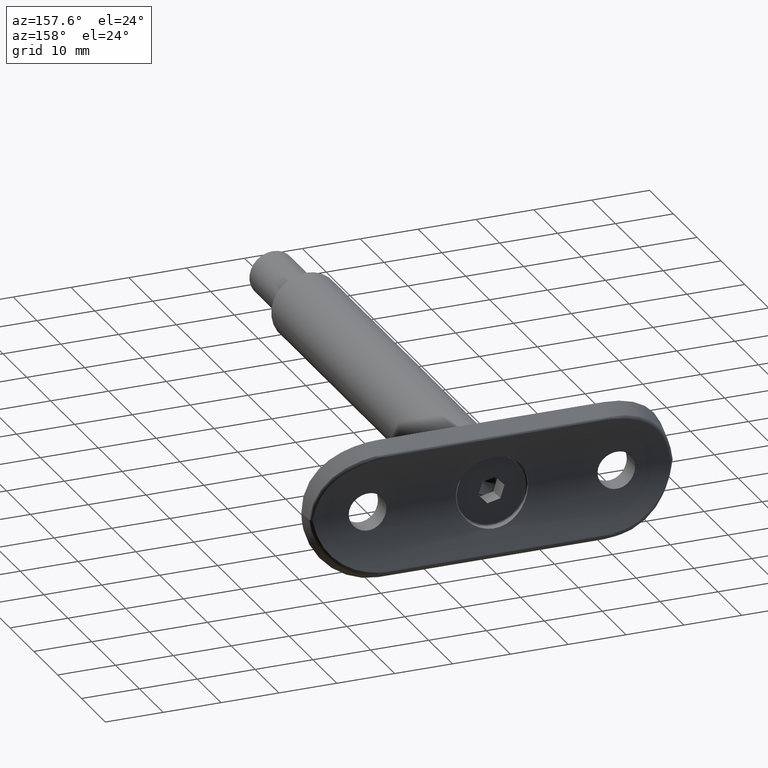
[diagram: clean part render]
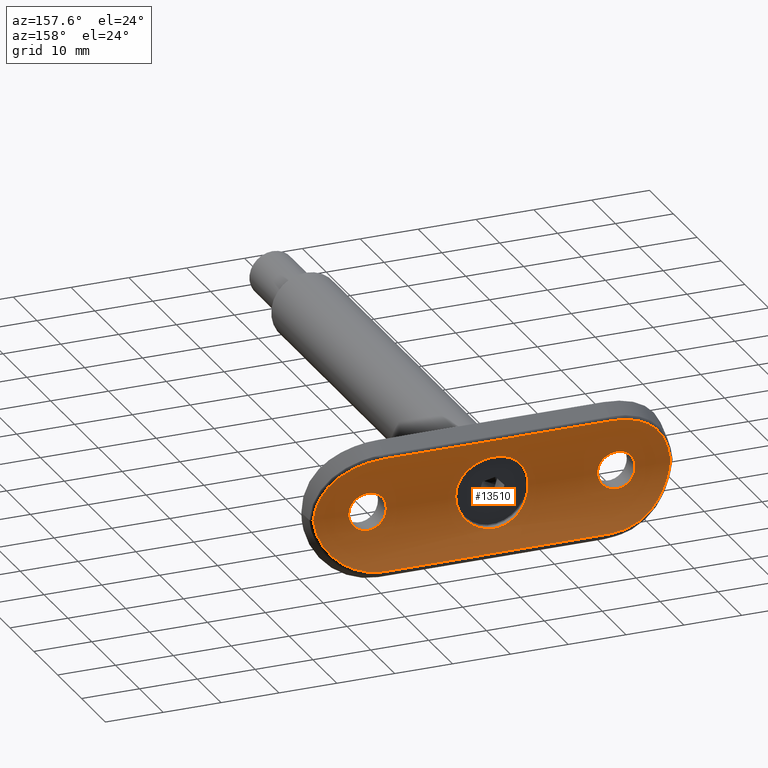
[diagram: same view with one face highlighted and labeled with its STEP entity id]
A machine part, auxiliary view. The second image highlights one B-rep face of the part: STEP entity #13510.
In plain terms, the highlighted cylindrical surface (partial cylindrical patch) has radius 21.2 mm, axis along (1, 0, 0).
Its self-contained STEP definition (entity closure, byte-faithful):
#27 = VECTOR ( 'NONE', #8560, 1000.000000000000000 ) ;
#30 = CARTESIAN_POINT ( 'NONE',  ( 0.8422358293998262200, 0.01571576921727201000, -24.64612005203396100 ) ) ;
#59 = CARTESIAN_POINT ( 'NONE',  ( -9.648266983172634400, 2.322637755928651500, 21.93581992887934700 ) ) ;
#66 = CARTESIAN_POINT ( 'NONE',  ( 7.640005329831074800, 1.423398855832131800, -26.66692244407042600 ) ) ;
#80 = CARTESIAN_POINT ( 'NONE',  ( 1.632114013627152800, 0.06218229672156012900, -18.68158538880011200 ) ) ;
#105 = EDGE_CURVE ( 'NONE', #8154, #10194, #7604, .T. ) ;
#129 = CARTESIAN_POINT ( 'NONE',  ( 1.983721702801608100, 0.09227673062906002800, -18.91695813430423800 ) ) ;
#132 = CARTESIAN_POINT ( 'NONE',  ( 9.869903768333188100, 2.437670730854278700, -19.50000000000000400 ) ) ;
#158 = CARTESIAN_POINT ( 'NONE',  ( -5.201211391313370000, 0.6457384445367473400, 29.03951747899034800 ) ) ;
#190 = ORIENTED_EDGE ( 'NONE', *, *, #6175, .T. ) ;
#207 = CARTESIAN_POINT ( 'NONE',  ( -7.640005329831074800, 1.423398855832126900, 26.66692244407043700 ) ) ;
#227 = CARTESIAN_POINT ( 'NONE',  ( -3.146879315023289900, 0.2348172704072529200, -22.33941132614858200 ) ) ;
#230 = CARTESIAN_POINT ( 'NONE',  ( -4.616649565942609000, 0.5065997281064381600, -29.41309669225901000 ) ) ;
#252 = CARTESIAN_POINT ( 'NONE',  ( -7.430964604426188600, 1.343631501921247900, 26.94263288636048900 ) ) ;
#435 = CARTESIAN_POINT ( 'NONE',  ( 0.4291155959866708200, 0.003316562383972961800, 18.27144141373703300 ) ) ;
#482 = CARTESIAN_POINT ( 'NONE',  ( 1.048768862925167700, 0.02504141971367204000, 18.41651341461582400 ) ) ;
#528 = CARTESIAN_POINT ( 'NONE',  ( 0.8422358293998262200, 0.01571576921727201000, 24.64612005203395700 ) ) ;
#534 = CARTESIAN_POINT ( 'NONE',  ( 3.811200534816030000, 0.3447709507075462100, -4.957723033748285600 ) ) ;
#578 = CARTESIAN_POINT ( 'NONE',  ( 3.145545920331509000, 0.2346159339094386600, 22.34487656152162300 ) ) ;
#628 = B_SPLINE_CURVE_WITH_KNOTS ( 'NONE', 3,
 ( #9442, #4099, #14364, #9683, #3908, #12019, #3180, #13586, #9926, #12263, #8972, #10138, #13427, #14564, #12313, #7682, #12421, #1980, #3132, #11239, #5348, #7737, #1932, #6631, #5298, #6465 ),
 .UNSPECIFIED., .F., .F.,
 ( 4, 2, 2, 2, 2, 2, 2, 2, 2, 2, 2, 2, 4 ),
 ( 0.0000000000000000000, 0.001059096318398935500, 0.002118192636797871000, 0.004236385273595744600, 0.005295481591994684500, 0.006354577910393622600, 0.008472770547191510100, 0.009531866865590450000, 0.01059096318398939000, 0.01270915582078727000, 0.01376825213918621500, 0.01482734845758516000, 0.01694554109438306200 ),
 .UNSPECIFIED. ) ;
#684 = CARTESIAN_POINT ( 'NONE',  ( -4.958897457267862100, 0.5876977555683001700, 3.809647071387578100 ) ) ;
#734 = CARTESIAN_POINT ( 'NONE',  ( -2.027418235541524400, 0.09375878759209072000, -5.926105725779486900 ) ) ;
#783 = CARTESIAN_POINT ( 'NONE',  ( -2.586182703388967500, 0.1579996132313417900, 23.47972158452784100 ) ) ;
#786 = CARTESIAN_POINT ( 'NONE',  ( 2.023361902274227300, 0.09337216526202657400, 5.927473218269420300 ) ) ;
#839 = CARTESIAN_POINT ( 'NONE',  ( 6.250272170820366600, 0.9423076863965762500, 0.4060068921556650400 ) ) ;
#890 = CARTESIAN_POINT ( 'NONE',  ( 3.142721505544150400, 0.2314420997654742500, 5.417654829986851400 ) ) ;
#1107 = VERTEX_POINT ( 'NONE', #8028 ) ;
#1150 = CARTESIAN_POINT ( 'NONE',  ( -2.583132212986966700, 0.1576246710211001200, -19.51634772807299000 ) ) ;
#1200 = CARTESIAN_POINT ( 'NONE',  ( 3.228949414987503100, 0.2472997075057228300, -21.07386210225567800 ) ) ;
#1245 = CARTESIAN_POINT ( 'NONE',  ( 9.869903768333188100, 2.437670730854278700, -20.20777837918800300 ) ) ;
#1269 = CARTESIAN_POINT ( 'NONE',  ( -0.7008956395690491000, 0.008757327635673150000, 30.81336595348423300 ) ) ;
#1290 = CARTESIAN_POINT ( 'NONE',  ( 2.582435166560725900, 0.1575340359345713500, -23.48473451216730400 ) ) ;
#1291 = CARTESIAN_POINT ( 'NONE',  ( -5.201211391313369100, 0.6457384445367466700, -29.03951747899034400 ) ) ;
#1324 = CARTESIAN_POINT ( 'NONE',  ( 4.316626468119189000, 0.4417530047554267800, -29.58390907136766000 ) ) ;
#1339 = CARTESIAN_POINT ( 'NONE',  ( 9.814006423039783700, 2.407961201125286000, -20.90506211287123200 ) ) ;
#1365 = CARTESIAN_POINT ( 'NONE',  ( -8.979762680300597200, 1.994134989752460300, 24.28066164924026900 ) ) ;
#1413 = CARTESIAN_POINT ( 'NONE',  ( -9.579260868800368200, 2.287400085288406900, 22.27686127888723500 ) ) ;
#1564 = EDGE_LOOP ( 'NONE', ( #7923, #4278, #2453, #190, #6963, #3573 ) ) ;
#1595 = DIRECTION ( 'NONE',  ( -0.0000000000000000000, -0.0000000000000000000, -1.000000000000000000 ) ) ;
#1601 = CARTESIAN_POINT ( 'NONE',  ( -0.2109978030792319400, -1.251290074125386200E-005, 18.24991837737998100 ) ) ;
#1657 = CARTESIAN_POINT ( 'NONE',  ( 2.584791864171171100, 0.1578306486049645700, 19.51856061093070900 ) ) ;
#1660 = CARTESIAN_POINT ( 'NONE',  ( 5.917687611305376000, 0.8425720839653394500, -2.021274815459365400 ) ) ;
#1754 = CARTESIAN_POINT ( 'NONE',  ( 2.148733871589562700, 0.1086367829507912500, 23.94749672852735500 ) ) ;
#1762 = CARTESIAN_POINT ( 'NONE',  ( 4.277366446684275100, 0.4354730194048820300, -4.561543828076407800 ) ) ;
#1864 = CARTESIAN_POINT ( 'NONE',  ( -5.423420992193904100, 0.7040967054121213300, -3.133353657714563300 ) ) ;
#1913 = CARTESIAN_POINT ( 'NONE',  ( -5.928679088154841500, 0.8451987399335063600, 2.020795127446080500 ) ) ;
#1932 = CARTESIAN_POINT ( 'NONE',  ( 9.648266983172636200, 2.322637755928652400, 21.93581992887934700 ) ) ;
#1962 = CARTESIAN_POINT ( 'NONE',  ( -6.250130518714773800, 0.9422639834117482200, -0.4100454562258851700 ) ) ;
#1980 = CARTESIAN_POINT ( 'NONE',  ( 8.703923101943106000, 1.865795259458940600, 24.90964313488691700 ) ) ;
#2007 = CARTESIAN_POINT ( 'NONE',  ( -2.821907254063744200, 0.1883137111381977500, 23.12618509924797600 ) ) ;
#2012 = CARTESIAN_POINT ( 'NONE',  ( 6.088342284034525600, 0.8930094056061588200, -1.427235600438272200 ) ) ;
#2256 = CARTESIAN_POINT ( 'NONE',  ( 2.148733871589562700, 0.1086367829507912500, -23.94749672852734800 ) ) ;
#2307 = CARTESIAN_POINT ( 'NONE',  ( 3.082978690918154900, 0.2252067195362546200, -22.55001038564953600 ) ) ;
#2409 = CARTESIAN_POINT ( 'NONE',  ( -0.8423241288772259600, 0.01569777600591362000, -18.35375505035547100 ) ) ;
#2413 = CARTESIAN_POINT ( 'NONE',  ( -8.028210341979752600, 1.577781140750707200, -26.09930719831840700 ) ) ;
#2439 = CARTESIAN_POINT ( 'NONE',  ( -9.814006423039787200, 2.407961201125283800, 20.90506211287122800 ) ) ;
#2453 = ORIENTED_EDGE ( 'NONE', *, *, #6210, .T. ) ;
#2466 = CARTESIAN_POINT ( 'NONE',  ( -1.392930344310200100, 0.04297360798305773600, -30.67720009998934600 ) ) ;
#2511 = CARTESIAN_POINT ( 'NONE',  ( -9.412720249738455900, 2.203964312871946600, -22.95375302811859400 ) ) ;
#2582 = CARTESIAN_POINT ( 'NONE',  ( -0.3518718617179879000, 1.904788868831087700E-015, 30.86704363135204700 ) ) ;
#2691 = CARTESIAN_POINT ( 'NONE',  ( -3.229269677274341900, 0.2473497222911701400, -21.92341250480405200 ) ) ;
#2718 = CARTESIAN_POINT ( 'NONE',  ( -1.355252715606880500E-016, 3.467847000831024600E-015, 24.74999999999999300 ) ) ;
#2766 = CARTESIAN_POINT ( 'NONE',  ( 2.819839704047506100, 0.1880380726275036600, 19.87035124118169400 ) ) ;
#2770 = CARTESIAN_POINT ( 'NONE',  ( 3.137565829016224100, 0.2306495598298788900, -5.420739444265339400 ) ) ;
#2956 = VERTEX_POINT ( 'NONE', #6547 ) ;
#2967 = CARTESIAN_POINT ( 'NONE',  ( -6.198521291053715700, 0.9264015604088397000, 0.8266439793733146900 ) ) ;
#3017 = CARTESIAN_POINT ( 'NONE',  ( 4.563671845579698100, 0.4965062165561431900, 4.275163095335099000 ) ) ;
#3058 = CARTESIAN_POINT ( 'NONE',  ( -0.4275380518344795200, 0.003270632450825641900, 24.72886359071462800 ) ) ;
#3062 = CARTESIAN_POINT ( 'NONE',  ( -4.128869264178622000, 0.4038601850098740800, 4.709693602582378300 ) ) ;
#3115 = CARTESIAN_POINT ( 'NONE',  ( -3.815599846328833900, 0.3433746249938587900, 4.966837164968661800 ) ) ;
#3132 = CARTESIAN_POINT ( 'NONE',  ( 8.979762680300604300, 1.994134989752459800, 24.28066164924026900 ) ) ;
#3161 = CARTESIAN_POINT ( 'NONE',  ( -3.249818524630297300, 0.2505685139125747900, 21.28246521156387800 ) ) ;
#3164 = CARTESIAN_POINT ( 'NONE',  ( -5.079922859556510200, 0.6172907211265594700, 3.646638392818011700 ) ) ;
#3180 = CARTESIAN_POINT ( 'NONE',  ( 3.394036165119937100, 0.2640775690859932200, 30.05103019445209300 ) ) ;
#3472 = CARTESIAN_POINT ( 'NONE',  ( -1.355252715606880500E-016, 3.467847000831024600E-015, -24.75000000000000400 ) ) ;
#3509 = CARTESIAN_POINT ( 'NONE',  ( 0.3518718617179937800, 2.952662739356573900E-015, -30.86704363135205000 ) ) ;
#3568 = CARTESIAN_POINT ( 'NONE',  ( -9.869903768333188100, 2.437670730854279100, 31.50000000000000000 ) ) ;
#3573 = ORIENTED_EDGE ( 'NONE', *, *, #105, .T. ) ;
#3628 = CARTESIAN_POINT ( 'NONE',  ( 0.4264434180833561200, 0.003268988495231741000, -24.72886645516787900 ) ) ;
#3631 = CARTESIAN_POINT ( 'NONE',  ( -8.703923101943104300, 1.865795259458939500, -24.90964313488692400 ) ) ;
#3681 = CARTESIAN_POINT ( 'NONE',  ( 9.314569367520148200, 2.155469429669438300, -23.29128285309046800 ) ) ;
#3707 = CARTESIAN_POINT ( 'NONE',  ( -6.285527558648515100, 0.9455755639782207300, 28.20157468809998800 ) ) ;
#3751 = CARTESIAN_POINT ( 'NONE',  ( -4.616649565942609900, 0.5065997281064386100, 29.41309669225901000 ) ) ;
#3863 = CARTESIAN_POINT ( 'NONE',  ( -2.818946742385632500, 0.1879160771953835600, -19.86874660788534500 ) ) ;
#3885 = CARTESIAN_POINT ( 'NONE',  ( 3.250120148735856400, 0.2506153065610602400, 21.28955024339622800 ) ) ;
#3892 = CARTESIAN_POINT ( 'NONE',  ( 2.779446063824878800, 0.1795486602694992800, -5.612910073426257400 ) ) ;
#3908 = CARTESIAN_POINT ( 'NONE',  ( 1.737335891831675000, 0.06858988666972828900, 30.59427768279755000 ) ) ;
#3936 = CARTESIAN_POINT ( 'NONE',  ( -1.627814602934465300, 0.06183765153734859000, 18.67896950773688000 ) ) ;
#3979 = CARTESIAN_POINT ( 'NONE',  ( 2.147498635732043100, 0.1084985908890658300, 19.05120459299062900 ) ) ;
#4029 = CARTESIAN_POINT ( 'NONE',  ( 0.2150499108967886800, 3.495046169915074900E-015, 24.74999999999999300 ) ) ;
#4062 = AXIS2_PLACEMENT_3D ( 'NONE', #7364, #1595, #14431 ) ;
#4077 = CARTESIAN_POINT ( 'NONE',  ( 3.082978690918154900, 0.2252067195362546200, 22.55001038564952200 ) ) ;
#4099 = CARTESIAN_POINT ( 'NONE',  ( 0.3518718617179892300, 2.387044724481025100E-015, 30.86704363135204700 ) ) ;
#4134 = CARTESIAN_POINT ( 'NONE',  ( -5.615371060258127900, 0.7565649993771607100, -2.774231810149240000 ) ) ;
#4186 = CARTESIAN_POINT ( 'NONE',  ( 3.817888132544003700, 0.3438054985029188600, 4.965018884724326400 ) ) ;
#4228 = CARTESIAN_POINT ( 'NONE',  ( -3.084331617472055900, 0.2254044745776143700, 22.54627208264581700 ) ) ;
#4231 = CARTESIAN_POINT ( 'NONE',  ( -5.919265578215369100, 0.8430304687443062100, -2.016754077386377500 ) ) ;
#4277 = CARTESIAN_POINT ( 'NONE',  ( -2.449360428614453700, 0.1414329518492851700, 23.64660096655394000 ) ) ;
#4278 = ORIENTED_EDGE ( 'NONE', *, *, #14491, .T. ) ;
#4284 = CARTESIAN_POINT ( 'NONE',  ( -4.561576321407828000, 0.4960445900959410400, 4.277392929307817200 ) ) ;
#4327 = CARTESIAN_POINT ( 'NONE',  ( -6.047522229278524900, 0.8806860551286525000, 1.629966593173951800 ) ) ;
#4406 = CARTESIAN_POINT ( 'NONE',  ( 0.0000000000000000000, 3.469446951953614200E-015, -24.75000000000000000 ) ) ;
#4440 = B_SPLINE_CURVE_WITH_KNOTS ( 'NONE', 3,
 ( #3472, #9198, #3628, #30, #11519, #10529, #5888, #8134, #2256, #5941, #1290, #12750, #12851, #2307, #4676, #14082, #8038, #8087, #1200, #12797, #5841, #10428, #13986, #7019, #11575, #12698, #129, #80, #4625, #5734, #8194, #4730, #9352, #13883, #5783, #2409, #14034, #7065, #13933, #8238, #15054, #9397, #1150, #3863, #8483, #4867, #4966, #9495, #10711, #11973, #2691, #227, #14183, #4917, #7211, #11923, #13039, #5012, #12988, #7301, #14268, #6038, #4824, #7258, #9447, #13085 ),
 .UNSPECIFIED., .T., .F.,
 ( 4, 2, 2, 2, 2, 2, 2, 2, 2, 2, 2, 2, 2, 2, 2, 2, 2, 2, 2, 2, 2, 2, 2, 2, 2, 2, 2, 2, 2, 2, 2, 2, 4 ),
 ( 0.0000000000000000000, 0.0006359210278306047000, 0.001271842055661209400, 0.001907763083491813800, 0.002543684111322419200, 0.003179605139153024500, 0.003815526166983629300, 0.004451447194814234900, 0.005087368222644839300, 0.005723289250475444500, 0.006359210278306048900, 0.006995131306136654100, 0.007631052333967257600, 0.008266973361797862900, 0.008902894389628466400, 0.009538815417459071600, 0.01017473644528967700, 0.01081065747312028200, 0.01144657850095088700, 0.01208249952878149100, 0.01271842055661209600, 0.01335434158444270100, 0.01399026261227330500, 0.01462618364010391000, 0.01526210466793451400, 0.01589802569576511900, 0.01653394672359572200, 0.01716986775142632600, 0.01780578877925693300, 0.01844170980708753600, 0.01907763083491814300, 0.01971355186274874700, 0.02034947289057935400 ),
 .UNSPECIFIED. ) ;
#4464 = CARTESIAN_POINT ( 'NONE',  ( 0.0000000000000000000, 3.469446951953614200E-015, 24.74999999999999600 ) ) ;
#4613 = CARTESIAN_POINT ( 'NONE',  ( 5.482231532182830800, 0.7192156178333439800, -28.83887209017430200 ) ) ;
#4625 = CARTESIAN_POINT ( 'NONE',  ( 1.441976982013434000, 0.04817999821229667500, -18.57963905767987400 ) ) ;
#4664 = CARTESIAN_POINT ( 'NONE',  ( 6.771736089016549400, 1.105174549759637000, -27.72763968669972500 ) ) ;
#4676 = CARTESIAN_POINT ( 'NONE',  ( 3.145545920331509000, 0.2346159339094386600, -22.34487656152162300 ) ) ;
#4722 = B_SPLINE_CURVE_WITH_KNOTS ( 'NONE', 3,
 ( #5090, #6345, #14494, #14398, #9858, #12200, #14441, #3892, #2770, #5231, #534, #13205, #1762, #13352, #14550, #10882, #13158, #8608, #1660, #9762, #2012, #13410, #5438, #839, #10013, #12248, #6660, #11279, #7665, #7773, #12296, #13518, #14801, #5485, #3017, #6449, #4186, #890, #5331, #786, #7830, #9003, #13627, #6556, #8849, #7617, #10065, #5283, #8957, #10118, #12401, #3115, #3062, #4284, #14600, #684, #3164, #8800, #9906, #1913, #4327, #8902, #2967, #13568, #12454, #1962, #6611, #11087, #11221, #4231, #14698, #4134, #1864, #13464, #9959, #7720, #11179, #14754, #11131, #6502, #14643, #734, #12349, #5381, #14910, #13785 ),
 .UNSPECIFIED., .T., .F.,
 ( 4, 2, 2, 2, 2, 2, 2, 2, 2, 2, 2, 2, 2, 2, 2, 2, 2, 2, 2, 2, 2, 2, 2, 2, 2, 2, 2, 2, 2, 2, 2, 2, 2, 2, 2, 2, 2, 2, 2, 2, 2, 2, 4 ),
 ( 0.0000000000000000000, 0.001227966697524697800, 0.001841950046287046900, 0.002455933395049396400, 0.003683900092574095000, 0.004297883441336442800, 0.004911866790098791100, 0.006139833487623486700, 0.007367800185148182200, 0.007981783533910531300, 0.008595766882672880400, 0.009823733580197578600, 0.01105170027772227700, 0.01227966697524697300, 0.01289365032400932200, 0.01350763367277167100, 0.01412161702153402100, 0.01473560037029636800, 0.01596356706782106300, 0.01719153376534575700, 0.01841950046287045200, 0.01903348381163279600, 0.01964746716039514300, 0.02087543385791983800, 0.02210340055544452900, 0.02333136725296922400, 0.02455933395049391500, 0.02517331729925626300, 0.02578730064801860700, 0.02701526734554329400, 0.02824323404306798200, 0.02885721739183033000, 0.02947120074059267300, 0.03069916743811736500, 0.03131315078687970500, 0.03192713413564205600, 0.03315510083316674400, 0.03438306753069143200, 0.03499705087945377500, 0.03561103422821611900, 0.03683900092574080700, 0.03806696762326549500, 0.03929493432079018300 ),
 .UNSPECIFIED. ) ;
#4730 = CARTESIAN_POINT ( 'NONE',  ( 0.4291155959866708200, 0.003316562383972961800, -18.27144141373704000 ) ) ;
#4731 = CARTESIAN_POINT ( 'NONE',  ( -9.814006423039789000, 2.407961201125286000, -20.90506211287123500 ) ) ;
#4759 = CARTESIAN_POINT ( 'NONE',  ( -4.316626468119180200, 0.4417530047554237800, 29.58390907136765300 ) ) ;
#4782 = CARTESIAN_POINT ( 'NONE',  ( -9.869903768333191600, 2.437670730854278200, -20.20777837918800300 ) ) ;
#4806 = CARTESIAN_POINT ( 'NONE',  ( -9.869903768333186300, 2.437670730854279100, 20.20777837918799900 ) ) ;
#4824 = CARTESIAN_POINT ( 'NONE',  ( -0.8474655071052326100, 0.01590391635378472100, -24.64486106012267900 ) ) ;
#4827 = CARTESIAN_POINT ( 'NONE',  ( -5.482231532182829000, 0.7192156178333417600, -28.83887209017430900 ) ) ;
#4867 = CARTESIAN_POINT ( 'NONE',  ( -3.082691481000268100, 0.2251614642759127700, -20.44882960865419400 ) ) ;
#4917 = CARTESIAN_POINT ( 'NONE',  ( -2.921563470123204300, 0.2021137761047908900, -22.93953245448076900 ) ) ;
#4966 = CARTESIAN_POINT ( 'NONE',  ( -3.145373074388930800, 0.2345905360707694300, -20.65500212356449300 ) ) ;
#5012 = CARTESIAN_POINT ( 'NONE',  ( -2.150385480687887300, 0.1088062235641052800, -23.94603853267264900 ) ) ;
#5034 = CARTESIAN_POINT ( 'NONE',  ( 3.084468863350041400, 0.2254241747152322400, 20.45406646657944100 ) ) ;
#5090 = CARTESIAN_POINT ( 'NONE',  ( -8.402566836762659400E-016, 3.467705828673164000E-015, -6.250000000000000000 ) ) ;
#5100 = LINE ( 'NONE', #3568, #12015 ) ;
#5127 = CARTESIAN_POINT ( 'NONE',  ( -1.982543221950625600, 0.09215287565810517700, 18.91591103231668900 ) ) ;
#5163 = FACE_BOUND ( 'NONE', #6645, .T. ) ;
#5175 = CARTESIAN_POINT ( 'NONE',  ( 2.582435166560725900, 0.1575340359345713500, 23.48473451216730000 ) ) ;
#5214 = EDGE_CURVE ( 'NONE', #8199, #8154, #5100, .T. ) ;
#5226 = CARTESIAN_POINT ( 'NONE',  ( 2.921457232206357000, 0.2020985129469361200, 20.06020391523705400 ) ) ;
#5231 = CARTESIAN_POINT ( 'NONE',  ( 3.645808770947283100, 0.3151353198254589500, -5.080564660467373100 ) ) ;
#5279 = CARTESIAN_POINT ( 'NONE',  ( -2.818946742385632500, 0.1879160771953835600, 19.86874660788533800 ) ) ;
#5283 = CARTESIAN_POINT ( 'NONE',  ( -1.628583440951775000, 0.05873803291983988000, 6.048261108094442800 ) ) ;
#5298 = CARTESIAN_POINT ( 'NONE',  ( 9.869903768333189800, 2.437670730854281800, 20.20777837918799900 ) ) ;
#5325 = CARTESIAN_POINT ( 'NONE',  ( -1.052750469737839400, 0.02525014802993461000, 24.58204548047347200 ) ) ;
#5331 = CARTESIAN_POINT ( 'NONE',  ( 2.776727184556488000, 0.1792122392081708600, 5.614153389730370600 ) ) ;
#5348 = CARTESIAN_POINT ( 'NONE',  ( 9.412720249738454100, 2.203964312871946200, 22.95375302811859100 ) ) ;
#5381 = CARTESIAN_POINT ( 'NONE',  ( -0.8241099700933545200, 0.01219504889547862200, -6.208986152240436600 ) ) ;
#5432 = CARTESIAN_POINT ( 'NONE',  ( -1.631629457461086300, 0.06212882879876718800, 24.31887391139545300 ) ) ;
#5438 = CARTESIAN_POINT ( 'NONE',  ( 6.249725049153894900, 0.9421388865473472300, -0.4143435962915447100 ) ) ;
#5485 = CARTESIAN_POINT ( 'NONE',  ( 4.702020635701367200, 0.5275876355808287700, 4.122503520289157600 ) ) ;
#5734 = CARTESIAN_POINT ( 'NONE',  ( 1.048768862925167700, 0.02504141971367204000, -18.41651341461583200 ) ) ;
#5783 = CARTESIAN_POINT ( 'NONE',  ( -0.4221747768704051100, 0.003162049178561666900, -18.27042794181227200 ) ) ;
#5841 = CARTESIAN_POINT ( 'NONE',  ( 3.084468863350041400, 0.2254241747152322400, -20.45406646657944100 ) ) ;
#5870 = CARTESIAN_POINT ( 'NONE',  ( -3.394036165119934400, 0.2640775690859905600, 30.05103019445209600 ) ) ;
#5888 = CARTESIAN_POINT ( 'NONE',  ( 1.628785365800687700, 0.06191954441468448800, -24.32039406380676600 ) ) ;
#5892 = CARTESIAN_POINT ( 'NONE',  ( 8.703923101943100700, 1.865795259458937500, -24.90964313488692400 ) ) ;
#5941 = CARTESIAN_POINT ( 'NONE',  ( 2.448021508383576800, 0.1412761474275461800, -23.64813597836817400 ) ) ;
#5943 = CARTESIAN_POINT ( 'NONE',  ( -1.737335891831669700, 0.06858988666972762300, -30.59427768279754600 ) ) ;
#5993 = CARTESIAN_POINT ( 'NONE',  ( -7.430964604426189400, 1.343631501921247000, -26.94263288636049600 ) ) ;
#6038 = CARTESIAN_POINT ( 'NONE',  ( -1.052750469737839400, 0.02525014802993461000, -24.58204548047347200 ) ) ;
#6175 = EDGE_CURVE ( 'NONE', #2956, #8199, #14058, .T. ) ;
#6189 = CARTESIAN_POINT ( 'NONE',  ( 1.441976982013434000, 0.04817999821229667500, 18.57963905767986600 ) ) ;
#6195 = CARTESIAN_POINT ( 'NONE',  ( 9.869903768333189800, 2.437670730854279100, 31.50000000000000000 ) ) ;
#6210 = EDGE_CURVE ( 'NONE', #11609, #2956, #11322, .T. ) ;
#6236 = CARTESIAN_POINT ( 'NONE',  ( 1.442239263721962100, 0.04819686276430737400, 24.42024035302756600 ) ) ;
#6337 = CARTESIAN_POINT ( 'NONE',  ( 3.229158249383773600, 0.2473313113571397000, 21.92522057988707800 ) ) ;
#6345 = CARTESIAN_POINT ( 'NONE',  ( 0.4153841166999967500, 3.517633715175232100E-015, -6.250000000000000900 ) ) ;
#6393 = CARTESIAN_POINT ( 'NONE',  ( 2.820025938915970500, 0.1880558028967098100, 23.12960000525239600 ) ) ;
#6442 = CARTESIAN_POINT ( 'NONE',  ( -3.229269677274341900, 0.2473497222911701400, 21.92341250480404500 ) ) ;
#6449 = CARTESIAN_POINT ( 'NONE',  ( 4.130900364371706600, 0.4042628310373367300, 4.707934048289296800 ) ) ;
#6465 = CARTESIAN_POINT ( 'NONE',  ( 9.869903768333193400, 2.437670730854281300, 19.50000000000000000 ) ) ;
#6502 = CARTESIAN_POINT ( 'NONE',  ( -3.138816783762645300, 0.2308336252617779200, -5.420037689340376600 ) ) ;
#6547 = CARTESIAN_POINT ( 'NONE',  ( 4.900831926637868600E-015, 3.903792046978890600E-015, -30.90726624805199300 ) ) ;
#6551 = CARTESIAN_POINT ( 'NONE',  ( -3.250179184896289100, 0.2506244651691746400, 21.71207803581957300 ) ) ;
#6556 = CARTESIAN_POINT ( 'NONE',  ( 0.4121785730507798200, 0.003014500416016625000, 6.239797492953991700 ) ) ;
#6611 = CARTESIAN_POINT ( 'NONE',  ( -6.209910792216527800, 0.9297259159817893300, -0.8173020832162268800 ) ) ;
#6631 = CARTESIAN_POINT ( 'NONE',  ( 9.814006423039789000, 2.407961201125284700, 20.90506211287123500 ) ) ;
#6645 = EDGE_LOOP ( 'NONE', ( #10127 ) ) ;
#6656 = CARTESIAN_POINT ( 'NONE',  ( -1.355252715606880500E-016, 3.467847000831024600E-015, 24.74999999999999300 ) ) ;
#6660 = CARTESIAN_POINT ( 'NONE',  ( 5.929858588863077700, 0.8455499187586798000, 2.017023791628234500 ) ) ;
#6963 = ORIENTED_EDGE ( 'NONE', *, *, #5214, .T. ) ;
#6985 = EDGE_LOOP ( 'NONE', ( #12485 ) ) ;
#7019 = CARTESIAN_POINT ( 'NONE',  ( 2.584791864171171100, 0.1578306486049645700, -19.51856061093071300 ) ) ;
#7052 = CARTESIAN_POINT ( 'NONE',  ( 5.201211391313374400, 0.6457384445367500000, -29.03951747899034800 ) ) ;
#7065 = CARTESIAN_POINT ( 'NONE',  ( -1.438401774077976900, 0.04794561704964943300, -18.57795835764009600 ) ) ;
#7067 = CARTESIAN_POINT ( 'NONE',  ( 8.028210341979749000, 1.577781140750710500, -26.09930719831840700 ) ) ;
#7106 = CARTESIAN_POINT ( 'NONE',  ( 1.392930344310208300, 0.04297360798305618900, -30.67720009998936300 ) ) ;
#7147 = CARTESIAN_POINT ( 'NONE',  ( -8.028210341979747300, 1.577781140750706500, 26.09930719831840300 ) ) ;
#7211 = CARTESIAN_POINT ( 'NONE',  ( -2.821907254063744200, 0.1883137111381977500, -23.12618509924797600 ) ) ;
#7258 = CARTESIAN_POINT ( 'NONE',  ( -0.4275380518344795200, 0.003270632450825641900, -24.72886359071462800 ) ) ;
#7301 = CARTESIAN_POINT ( 'NONE',  ( -1.631629457461086300, 0.06212882879876718800, -24.31887391139545000 ) ) ;
#7364 = CARTESIAN_POINT ( 'NONE',  ( -2.596251214192388800E-015, 21.19999999999999900, 31.50000000000000000 ) ) ;
#7409 = CARTESIAN_POINT ( 'NONE',  ( 2.920790955711717100, 0.2020074540475383100, 22.94092318034652000 ) ) ;
#7603 = CARTESIAN_POINT ( 'NONE',  ( 9.869903768333188100, 2.437670730854278700, -19.50000000000000400 ) ) ;
#7604 = B_SPLINE_CURVE_WITH_KNOTS ( 'NONE', 3,
 ( #12929, #4806, #2439, #59, #1413, #14065, #9333, #1365, #10557, #14114, #7147, #207, #252, #11711, #3707, #8217, #158, #3751, #4759, #5870, #12878, #8321, #9521, #1269, #2582, #8267 ),
 .UNSPECIFIED., .F., .F.,
 ( 4, 2, 2, 2, 2, 2, 2, 2, 2, 2, 2, 2, 4 ),
 ( 0.0000000000000000000, 0.002094732909185188300, 0.003142099363777777200, 0.004189465818370366100, 0.006284198727555533600, 0.007331565182148117700, 0.008378931636740702800, 0.01047366454592586400, 0.01152103100051844900, 0.01256839745511103100, 0.01466313036429619000, 0.01571049681888877000, 0.01675786327348135000 ),
 .UNSPECIFIED. ) ;
#7609 = CARTESIAN_POINT ( 'NONE',  ( -0.8474655071052326100, 0.01590391635378472100, 24.64486106012267900 ) ) ;
#7617 = CARTESIAN_POINT ( 'NONE',  ( -0.4066726438284273800, -5.109145832981337500E-005, 6.250173302240964000 ) ) ;
#7663 = ORIENTED_EDGE ( 'NONE', *, *, #14562, .T. ) ;
#7665 = CARTESIAN_POINT ( 'NONE',  ( 5.604762028757867200, 0.7540563641355658700, 2.773225672905785800 ) ) ;
#7682 = CARTESIAN_POINT ( 'NONE',  ( 8.028210341979750800, 1.577781140750711600, 26.09930719831840000 ) ) ;
#7720 = CARTESIAN_POINT ( 'NONE',  ( -4.278556194359624400, 0.4357183617580924200, -4.560428189436137800 ) ) ;
#7737 = CARTESIAN_POINT ( 'NONE',  ( 9.579260868800364600, 2.287400085288406900, 22.27686127888723500 ) ) ;
#7740 = CARTESIAN_POINT ( 'NONE',  ( 3.727159214371662400E-016, 2.335886912316822500E-015, 30.90726624805199300 ) ) ;
#7773 = CARTESIAN_POINT ( 'NONE',  ( 5.411934874550040000, 0.7021725669869980400, 3.132905830933766700 ) ) ;
#7830 = CARTESIAN_POINT ( 'NONE',  ( 1.633558007879630600, 0.05916786625532673100, 6.046758816535623600 ) ) ;
#7923 = ORIENTED_EDGE ( 'NONE', *, *, #9205, .T. ) ;
#8028 = CARTESIAN_POINT ( 'NONE',  ( 0.0000000000000000000, 3.469446951953614200E-015, -6.249999999999999100 ) ) ;
#8038 = CARTESIAN_POINT ( 'NONE',  ( 3.249878801187870100, 0.2505778649504938300, -21.71414448128089000 ) ) ;
#8087 = CARTESIAN_POINT ( 'NONE',  ( 3.250120148735856400, 0.2506153065610602400, -21.28955024339622800 ) ) ;
#8105 = EDGE_LOOP ( 'NONE', ( #7663 ) ) ;
#8134 = CARTESIAN_POINT ( 'NONE',  ( 1.981826496045466300, 0.09209269363216753000, -24.08455570312869700 ) ) ;
#8154 = VERTEX_POINT ( 'NONE', #12854 ) ;
#8178 = CARTESIAN_POINT ( 'NONE',  ( 4.616649565942614300, 0.5065997281064410500, -29.41309669225901800 ) ) ;
#8194 = CARTESIAN_POINT ( 'NONE',  ( 0.8461986512866588300, 0.01586733444616038000, -18.35489609357465200 ) ) ;
#8196 = CARTESIAN_POINT ( 'NONE',  ( -9.579260868800371800, 2.287400085288406900, -22.27686127888724200 ) ) ;
#8199 = VERTEX_POINT ( 'NONE', #13182 ) ;
#8206 = CYLINDRICAL_SURFACE ( 'NONE', #4062, 21.19999999999999600 ) ;
#8217 = CARTESIAN_POINT ( 'NONE',  ( -5.482231532182829900, 0.7192156178333422000, 28.83887209017430200 ) ) ;
#8238 = CARTESIAN_POINT ( 'NONE',  ( -1.982543221950625600, 0.09215287565810517700, -18.91591103231669300 ) ) ;
#8240 = CARTESIAN_POINT ( 'NONE',  ( -8.207536722232587700, 1.652397115461235400, -25.80761379992625800 ) ) ;
#8267 = CARTESIAN_POINT ( 'NONE',  ( 3.727159214371662400E-016, 2.335886912316822500E-015, 30.90726624805199300 ) ) ;
#8277 = CARTESIAN_POINT ( 'NONE',  ( 7.430964604426191200, 1.343631501921247700, -26.94263288636050300 ) ) ;
#8297 = CARTESIAN_POINT ( 'NONE',  ( 9.579260868800368200, 2.287400085288407800, -22.27686127888724600 ) ) ;
#8321 = CARTESIAN_POINT ( 'NONE',  ( -1.737335891831670100, 0.06858988666972785900, 30.59427768279755700 ) ) ;
#8339 = CARTESIAN_POINT ( 'NONE',  ( -8.979762680300602500, 1.994134989752459200, -24.28066164924026900 ) ) ;
#8483 = CARTESIAN_POINT ( 'NONE',  ( -2.918967894088989800, 0.2017509110877178400, -20.05515662026937900 ) ) ;
#8553 = CARTESIAN_POINT ( 'NONE',  ( 0.2135048230366454500, 1.258701806793371000E-005, 18.25008210609304600 ) ) ;
#8560 = DIRECTION ( 'NONE',  ( -0.0000000000000000000, -0.0000000000000000000, -1.000000000000000000 ) ) ;
#8602 = CARTESIAN_POINT ( 'NONE',  ( -1.047135578693872100, 0.02496962545759998800, 18.41603597569792000 ) ) ;
#8608 = CARTESIAN_POINT ( 'NONE',  ( 5.848568015681266300, 0.8225408496146965300, -2.213164431938651400 ) ) ;
#8699 = CARTESIAN_POINT ( 'NONE',  ( 3.249878801187870100, 0.2505778649504938300, 21.71414448128087600 ) ) ;
#8800 = CARTESIAN_POINT ( 'NONE',  ( -5.418342615258406900, 0.7027876682133722400, 3.141403287028121700 ) ) ;
#8846 = CARTESIAN_POINT ( 'NONE',  ( -3.228460125727636900, 0.2472242654131645300, 21.07053707394224100 ) ) ;
#8849 = CARTESIAN_POINT ( 'NONE',  ( 0.2073184500589442000, 2.579505848638968800E-005, 6.249912503154440900 ) ) ;
#8902 = CARTESIAN_POINT ( 'NONE',  ( -6.168043762102301200, 0.9170762160689426300, 1.029291115725365000 ) ) ;
#8957 = CARTESIAN_POINT ( 'NONE',  ( -2.019498987587625000, 0.09300041362135157100, 5.928790806727266500 ) ) ;
#8972 = CARTESIAN_POINT ( 'NONE',  ( 5.482231532182832500, 0.7192156178333423100, 28.83887209017430900 ) ) ;
#9003 = CARTESIAN_POINT ( 'NONE',  ( 1.028432529712558500, 0.02399588449466818000, 6.168237391625242900 ) ) ;
#9078 = VERTEX_POINT ( 'NONE', #4464 ) ;
#9198 = CARTESIAN_POINT ( 'NONE',  ( 0.2150499108967886800, 3.495046169915074900E-015, -24.74999999999999600 ) ) ;
#9205 = EDGE_CURVE ( 'NONE', #10194, #12154, #628, .T. ) ;
#9242 = FACE_BOUND ( 'NONE', #8105, .T. ) ;
#9255 = CARTESIAN_POINT ( 'NONE',  ( -0.3518718617179839600, 3.779249252411873000E-015, -30.86704363135203600 ) ) ;
#9297 = DIRECTION ( 'NONE',  ( 0.0000000000000000000, 0.0000000000000000000, 1.000000000000000000 ) ) ;
#9333 = CARTESIAN_POINT ( 'NONE',  ( -9.314569367520153500, 2.155469429669438300, 23.29128285309047900 ) ) ;
#9341 = CARTESIAN_POINT ( 'NONE',  ( 4.900831926637868600E-015, 3.903792046978890600E-015, -30.90726624805199300 ) ) ;
#9352 = CARTESIAN_POINT ( 'NONE',  ( 0.2135048230366454500, 1.258701806793371000E-005, -18.25008210609304300 ) ) ;
#9354 = CARTESIAN_POINT ( 'NONE',  ( -9.869903768333188100, 2.437670730854280400, -19.50000000000000000 ) ) ;
#9397 = CARTESIAN_POINT ( 'NONE',  ( -2.445886756578100800, 0.1410260412209521100, -19.34941560476180900 ) ) ;
#9400 = CARTESIAN_POINT ( 'NONE',  ( -9.314569367520157100, 2.155469429669437900, -23.29128285309047900 ) ) ;
#9434 = CARTESIAN_POINT ( 'NONE',  ( 1.737335891831677000, 0.06858988666972884500, -30.59427768279755000 ) ) ;
#9442 = CARTESIAN_POINT ( 'NONE',  ( 3.727159214371662400E-016, 2.335886912316822500E-015, 30.90726624805199300 ) ) ;
#9447 = CARTESIAN_POINT ( 'NONE',  ( -0.2150499108967897100, 3.440647831746974700E-015, -24.75000000000001100 ) ) ;
#9448 = CARTESIAN_POINT ( 'NONE',  ( -7.640005329831076600, 1.423398855832127800, -26.66692244407043300 ) ) ;
#9495 = CARTESIAN_POINT ( 'NONE',  ( -3.228460125727636900, 0.2472242654131645300, -21.07053707394224800 ) ) ;
#9521 = CARTESIAN_POINT ( 'NONE',  ( -1.392930344310202400, 0.04297360798305503700, 30.67720009998936000 ) ) ;
#9683 = CARTESIAN_POINT ( 'NONE',  ( 1.392930344310205000, 0.04297360798305521800, 30.67720009998934900 ) ) ;
#9710 = CARTESIAN_POINT ( 'NONE',  ( -0.4221747768704051100, 0.003162049178561666900, 18.27042794181227200 ) ) ;
#9762 = CARTESIAN_POINT ( 'NONE',  ( 6.037489438090903900, 0.8777801580022958100, -1.628895278877125400 ) ) ;
#9854 = CARTESIAN_POINT ( 'NONE',  ( 3.145907283640575300, 0.2346707339384939100, 20.65680654937358400 ) ) ;
#9858 = CARTESIAN_POINT ( 'NONE',  ( 1.623571473302696500, 0.06133674405568356100, -6.038947878889747900 ) ) ;
#9906 = CARTESIAN_POINT ( 'NONE',  ( -5.611457660758763800, 0.7554722972468536100, 2.782874700547285600 ) ) ;
#9926 = CARTESIAN_POINT ( 'NONE',  ( 4.616649565942611700, 0.5065997281064418300, 29.41309669225901400 ) ) ;
#9959 = CARTESIAN_POINT ( 'NONE',  ( -4.708117847964834900, 0.5273280253430179300, -4.130414004293342600 ) ) ;
#10009 = CARTESIAN_POINT ( 'NONE',  ( -2.150385480687887300, 0.1088062235641052800, 23.94603853267264900 ) ) ;
#10013 = CARTESIAN_POINT ( 'NONE',  ( 6.209136940720306100, 0.9294881926628048000, 0.8227772426481437800 ) ) ;
#10065 = CARTESIAN_POINT ( 'NONE',  ( -0.8169384976708171700, 0.01184639767127453200, 6.210181796602535400 ) ) ;
#10114 = CARTESIAN_POINT ( 'NONE',  ( -2.918967894088989800, 0.2017509110877178400, 20.05515662026936900 ) ) ;
#10118 = CARTESIAN_POINT ( 'NONE',  ( -2.773078085023255500, 0.1787287340984144400, 5.615957133487128800 ) ) ;
#10127 = ORIENTED_EDGE ( 'NONE', *, *, #10983, .T. ) ;
#10138 = CARTESIAN_POINT ( 'NONE',  ( 6.285527558648517800, 0.9455755639782215100, 28.20157468809998500 ) ) ;
#10194 = VERTEX_POINT ( 'NONE', #7740 ) ;
#10428 = CARTESIAN_POINT ( 'NONE',  ( 2.921457232206357000, 0.2020985129469361200, -20.06020391523705400 ) ) ;
#10513 = B_SPLINE_CURVE_WITH_KNOTS ( 'NONE', 3,
 ( #2718, #4029, #13301, #528, #10824, #6236, #12140, #10925, #1754, #14393, #5175, #6393, #7409, #4077, #578, #6337, #8699, #3885, #11998, #9854, #5034, #5226, #2766, #1657, #12195, #3979, #13348, #13152, #6189, #482, #14339, #435, #8553, #1601, #9710, #10875, #8602, #12094, #3936, #5127, #13515, #11218, #12243, #5279, #10114, #14596, #14797, #8846, #3161, #6551, #6442, #11274, #4228, #13457, #2007, #783, #4277, #10009, #13404, #5432, #11080, #5325, #7609, #3058, #12397, #6656 ),
 .UNSPECIFIED., .T., .F.,
 ( 4, 2, 2, 2, 2, 2, 2, 2, 2, 2, 2, 2, 2, 2, 2, 2, 2, 2, 2, 2, 2, 2, 2, 2, 2, 2, 2, 2, 2, 2, 2, 2, 4 ),
 ( 0.0000000000000000000, 0.0006359210278306047000, 0.001271842055661209400, 0.001907763083491813800, 0.002543684111322419200, 0.003179605139153024500, 0.003815526166983629300, 0.004451447194814234900, 0.005087368222644839300, 0.005723289250475444500, 0.006359210278306048900, 0.006995131306136654100, 0.007631052333967257600, 0.008266973361797862900, 0.008902894389628466400, 0.009538815417459071600, 0.01017473644528967700, 0.01081065747312028200, 0.01144657850095088700, 0.01208249952878149100, 0.01271842055661209600, 0.01335434158444270100, 0.01399026261227330500, 0.01462618364010391000, 0.01526210466793451400, 0.01589802569576511900, 0.01653394672359572200, 0.01716986775142632600, 0.01780578877925693300, 0.01844170980708753600, 0.01907763083491814300, 0.01971355186274874700, 0.02034947289057935400 ),
 .UNSPECIFIED. ) ;
#10515 = CARTESIAN_POINT ( 'NONE',  ( 2.749051219980724400, 0.1680710607626513000, -30.30224362552802500 ) ) ;
#10529 = CARTESIAN_POINT ( 'NONE',  ( 1.442239263721962100, 0.04819686276430737400, -24.42024035302756200 ) ) ;
#10530 = CARTESIAN_POINT ( 'NONE',  ( 9.412720249738455900, 2.203964312871945700, -22.95375302811859400 ) ) ;
#10557 = CARTESIAN_POINT ( 'NONE',  ( -8.703923101943100700, 1.865795259458935100, 24.90964313488692000 ) ) ;
#10579 = CARTESIAN_POINT ( 'NONE',  ( -2.749051219980717800, 0.1680710607626496000, -30.30224362552802500 ) ) ;
#10627 = CARTESIAN_POINT ( 'NONE',  ( -3.394036165119934400, 0.2640775690859932200, -30.05103019445209600 ) ) ;
#10711 = CARTESIAN_POINT ( 'NONE',  ( -3.249818524630297300, 0.2505685139125747900, -21.28246521156388500 ) ) ;
#10824 = CARTESIAN_POINT ( 'NONE',  ( 1.048813183214363700, 0.02504259846290238900, 24.58347996912377600 ) ) ;
#10875 = CARTESIAN_POINT ( 'NONE',  ( -0.8423241288772259600, 0.01569777600591362000, 18.35375505035547100 ) ) ;
#10882 = CARTESIAN_POINT ( 'NONE',  ( 5.421713914954439800, 0.7036460286707163500, -3.136250887450267000 ) ) ;
#10925 = CARTESIAN_POINT ( 'NONE',  ( 1.981826496045466300, 0.09209269363216753000, 24.08455570312868900 ) ) ;
#10983 = EDGE_CURVE ( 'NONE', #11071, #11071, #4440, .T. ) ;
#11071 = VERTEX_POINT ( 'NONE', #4406 ) ;
#11080 = CARTESIAN_POINT ( 'NONE',  ( -1.443554947874321700, 0.04829879282739314700, 24.41949259422040400 ) ) ;
#11087 = CARTESIAN_POINT ( 'NONE',  ( -6.089742371759955500, 0.8934299125204732100, -1.421146203323439400 ) ) ;
#11131 = CARTESIAN_POINT ( 'NONE',  ( -3.647338249130435400, 0.3154015837076604700, -5.079472761557563700 ) ) ;
#11179 = CARTESIAN_POINT ( 'NONE',  ( -4.128233867710009400, 0.4052062085381896700, -4.697006286380011300 ) ) ;
#11218 = CARTESIAN_POINT ( 'NONE',  ( -2.445886756578100800, 0.1410260412209521100, 19.34941560476180600 ) ) ;
#11221 = CARTESIAN_POINT ( 'NONE',  ( -6.039301808927668000, 0.8783182993483281700, -1.622293331917177500 ) ) ;
#11239 = CARTESIAN_POINT ( 'NONE',  ( 9.314569367520151700, 2.155469429669437400, 23.29128285309046100 ) ) ;
#11274 = CARTESIAN_POINT ( 'NONE',  ( -3.146879315023289900, 0.2348172704072529200, 22.33941132614858600 ) ) ;
#11279 = CARTESIAN_POINT ( 'NONE',  ( 5.693306450056796000, 0.7786147160836306400, 2.586704202400923700 ) ) ;
#11322 = B_SPLINE_CURVE_WITH_KNOTS ( 'NONE', 3,
 ( #132, #1245, #1339, #14136, #8297, #10530, #3681, #11687, #5892, #14037, #7067, #66, #8277, #4664, #15039, #4613, #7052, #8178, #1324, #12681, #10515, #9434, #7106, #12737, #3509, #9341 ),
 .UNSPECIFIED., .F., .F.,
 ( 4, 2, 2, 2, 2, 2, 2, 2, 2, 2, 2, 2, 4 ),
 ( 0.0000000000000000000, 0.002094732909185164000, 0.003142099363777750700, 0.004189465818370337500, 0.006284198727555501500, 0.007331565182148085600, 0.008378931636740669800, 0.01047366454592584500, 0.01152103100051843000, 0.01256839745511101700, 0.01466313036429618300, 0.01571049681888876300, 0.01675786327348134300 ),
 .UNSPECIFIED. ) ;
#11334 = CARTESIAN_POINT ( 'NONE',  ( 9.869903768333193400, 2.437670730854281300, 19.50000000000000000 ) ) ;
#11399 = FACE_OUTER_BOUND ( 'NONE', #1564, .T. ) ;
#11519 = CARTESIAN_POINT ( 'NONE',  ( 1.048813183214363700, 0.02504259846290238900, -24.58347996912379700 ) ) ;
#11575 = CARTESIAN_POINT ( 'NONE',  ( 2.450216287825430800, 0.1415189953341011400, -19.35412267854471200 ) ) ;
#11609 = VERTEX_POINT ( 'NONE', #7603 ) ;
#11687 = CARTESIAN_POINT ( 'NONE',  ( 8.979762680300599000, 1.994134989752460300, -24.28066164924026200 ) ) ;
#11711 = CARTESIAN_POINT ( 'NONE',  ( -6.771736089016547700, 1.105174549759638600, 27.72763968669972500 ) ) ;
#11737 = CARTESIAN_POINT ( 'NONE',  ( -9.648266983172638000, 2.322637755928653300, -21.93581992887935400 ) ) ;
#11793 = CARTESIAN_POINT ( 'NONE',  ( -6.285527558648515100, 0.9455755639782204000, -28.20157468809998800 ) ) ;
#11826 = LINE ( 'NONE', #6195, #27 ) ;
#11923 = CARTESIAN_POINT ( 'NONE',  ( -2.586182703388967500, 0.1579996132313417900, -23.47972158452784100 ) ) ;
#11973 = CARTESIAN_POINT ( 'NONE',  ( -3.250179184896289100, 0.2506244651691746400, -21.71207803581958000 ) ) ;
#11998 = CARTESIAN_POINT ( 'NONE',  ( 3.228949414987503100, 0.2472997075057228300, 21.07386210225567400 ) ) ;
#12015 = VECTOR ( 'NONE', #9297, 1000.000000000000000 ) ;
#12019 = CARTESIAN_POINT ( 'NONE',  ( 2.749051219980724000, 0.1680710607626508000, 30.30224362552802500 ) ) ;
#12094 = CARTESIAN_POINT ( 'NONE',  ( -1.438401774077976900, 0.04794561704964943300, 18.57795835764009600 ) ) ;
#12140 = CARTESIAN_POINT ( 'NONE',  ( 1.628785365800687700, 0.06191954441468448800, 24.32039406380675900 ) ) ;
#12154 = VERTEX_POINT ( 'NONE', #11334 ) ;
#12195 = CARTESIAN_POINT ( 'NONE',  ( 2.450216287825430800, 0.1415189953341011400, 19.35412267854471900 ) ) ;
#12200 = CARTESIAN_POINT ( 'NONE',  ( 2.017426682319550100, 0.09528350916322328400, -5.919025713268562900 ) ) ;
#12243 = CARTESIAN_POINT ( 'NONE',  ( -2.583132212986966700, 0.1576246710211001200, 19.51634772807298300 ) ) ;
#12248 = CARTESIAN_POINT ( 'NONE',  ( 6.048601703737722000, 0.8810077043777760900, 1.626272230955911400 ) ) ;
#12263 = CARTESIAN_POINT ( 'NONE',  ( 5.201211391313371700, 0.6457384445367504400, 29.03951747899034100 ) ) ;
#12296 = CARTESIAN_POINT ( 'NONE',  ( 5.307255044746157500, 0.6747329201279588200, 3.307069988759585600 ) ) ;
#12313 = CARTESIAN_POINT ( 'NONE',  ( 7.640005329831078400, 1.423398855832132900, 26.66692244407043000 ) ) ;
#12349 = CARTESIAN_POINT ( 'NONE',  ( -1.628331638382397400, 0.05878972328453845000, -6.048074268472876500 ) ) ;
#12397 = CARTESIAN_POINT ( 'NONE',  ( -0.2150499108967897100, 3.440647831746974700E-015, 24.74999999999999300 ) ) ;
#12401 = CARTESIAN_POINT ( 'NONE',  ( -3.138961909374037100, 0.2308669146253549700, 5.419888535949557900 ) ) ;
#12415 = EDGE_CURVE ( 'NONE', #9078, #9078, #10513, .T. ) ;
#12421 = CARTESIAN_POINT ( 'NONE',  ( 8.207536722232589500, 1.652397115461235800, 25.80761379992625500 ) ) ;
#12454 = CARTESIAN_POINT ( 'NONE',  ( -6.249934268010309600, 0.9422034354612759400, 0.2079996149894343700 ) ) ;
#12485 = ORIENTED_EDGE ( 'NONE', *, *, #12415, .F. ) ;
#12681 = CARTESIAN_POINT ( 'NONE',  ( 3.394036165119943800, 0.2640775690859930600, -30.05103019445210300 ) ) ;
#12698 = CARTESIAN_POINT ( 'NONE',  ( 2.147498635732043100, 0.1084985908890658300, -19.05120459299064000 ) ) ;
#12737 = CARTESIAN_POINT ( 'NONE',  ( 0.7008956395690539900, 0.008757327635673928900, -30.81336595348423700 ) ) ;
#12750 = CARTESIAN_POINT ( 'NONE',  ( 2.820025938915970500, 0.1880558028967098100, -23.12960000525240300 ) ) ;
#12797 = CARTESIAN_POINT ( 'NONE',  ( 3.145907283640575300, 0.2346707339384939100, -20.65680654937358400 ) ) ;
#12851 = CARTESIAN_POINT ( 'NONE',  ( 2.920790955711717100, 0.2020074540475383100, -22.94092318034651600 ) ) ;
#12853 = CARTESIAN_POINT ( 'NONE',  ( -0.7008956395690468800, 0.008757327635675944700, -30.81336595348422900 ) ) ;
#12854 = CARTESIAN_POINT ( 'NONE',  ( -9.869903768333188100, 2.437670730854280000, 19.50000000000000000 ) ) ;
#12878 = CARTESIAN_POINT ( 'NONE',  ( -2.749051219980716400, 0.1680710607626497700, 30.30224362552802100 ) ) ;
#12929 = CARTESIAN_POINT ( 'NONE',  ( -9.869903768333188100, 2.437670730854280000, 19.50000000000000000 ) ) ;
#12949 = CARTESIAN_POINT ( 'NONE',  ( -6.771736089016548600, 1.105174549759636800, -27.72763968669973200 ) ) ;
#12988 = CARTESIAN_POINT ( 'NONE',  ( -1.987048177762576800, 0.09257353735407764000, -24.08067904902007300 ) ) ;
#13039 = CARTESIAN_POINT ( 'NONE',  ( -2.449360428614453700, 0.1414329518492851700, -23.64660096655394700 ) ) ;
#13085 = CARTESIAN_POINT ( 'NONE',  ( -1.355252715606880500E-016, 3.467847000831024600E-015, -24.75000000000000400 ) ) ;
#13152 = CARTESIAN_POINT ( 'NONE',  ( 1.632114013627152800, 0.06218229672156012900, 18.68158538880010500 ) ) ;
#13158 = CARTESIAN_POINT ( 'NONE',  ( 5.614239911192776800, 0.7562560361792625100, -2.776362506403470900 ) ) ;
#13182 = CARTESIAN_POINT ( 'NONE',  ( -9.869903768333188100, 2.437670730854280400, -19.50000000000000000 ) ) ;
#13205 = CARTESIAN_POINT ( 'NONE',  ( 4.126940293863238900, 0.4049478955708839000, -4.698151871409467400 ) ) ;
#13301 = CARTESIAN_POINT ( 'NONE',  ( 0.4264434180833561200, 0.003268988495231741000, 24.72886645516787900 ) ) ;
#13348 = CARTESIAN_POINT ( 'NONE',  ( 1.983721702801608100, 0.09227673062906002800, 18.91695813430423100 ) ) ;
#13352 = CARTESIAN_POINT ( 'NONE',  ( 4.707027255139117900, 0.5270787693729568300, -4.131655561407222300 ) ) ;
#13404 = CARTESIAN_POINT ( 'NONE',  ( -1.987048177762576800, 0.09257353735407764000, 24.08067904902006300 ) ) ;
#13410 = CARTESIAN_POINT ( 'NONE',  ( 6.209466178652506900, 0.9295869590769866300, -0.8213907006140728200 ) ) ;
#13427 = CARTESIAN_POINT ( 'NONE',  ( 6.771736089016553000, 1.105174549759638400, 27.72763968669971700 ) ) ;
#13457 = CARTESIAN_POINT ( 'NONE',  ( -2.921563470123204300, 0.2021137761047908900, 22.93953245448076600 ) ) ;
#13464 = CARTESIAN_POINT ( 'NONE',  ( -4.966423312642176800, 0.5885908633273673200, -3.816548163265736100 ) ) ;
#13510 = ADVANCED_FACE ( 'NONE', ( #11399, #9242, #13948, #5163 ), #8206, .F. ) ;
#13515 = CARTESIAN_POINT ( 'NONE',  ( -2.146023883358511200, 0.1083588188450097100, 19.05011086799809700 ) ) ;
#13518 = CARTESIAN_POINT ( 'NONE',  ( 5.081585807027368100, 0.6177010395854840600, 3.644331722875381100 ) ) ;
#13568 = CARTESIAN_POINT ( 'NONE',  ( -6.239524233404178100, 0.9389833121286498300, 0.4163457758189954600 ) ) ;
#13586 = CARTESIAN_POINT ( 'NONE',  ( 4.316626468119182800, 0.4417530047554268400, 29.58390907136765700 ) ) ;
#13627 = CARTESIAN_POINT ( 'NONE',  ( 0.8222993865498448000, 0.01496025105131938200, 6.199095712120993100 ) ) ;
#13785 = CARTESIAN_POINT ( 'NONE',  ( -8.402566836762659400E-016, 3.467705828673164000E-015, -6.250000000000000000 ) ) ;
#13883 = CARTESIAN_POINT ( 'NONE',  ( -0.2109978030792319400, -1.251290074125386200E-005, -18.24991837737999100 ) ) ;
#13933 = CARTESIAN_POINT ( 'NONE',  ( -1.627814602934465300, 0.06183765153734859000, -18.67896950773688800 ) ) ;
#13948 = FACE_BOUND ( 'NONE', #6985, .T. ) ;
#13986 = CARTESIAN_POINT ( 'NONE',  ( 2.819839704047506100, 0.1880380726275036600, -19.87035124118171200 ) ) ;
#14034 = CARTESIAN_POINT ( 'NONE',  ( -1.047135578693872100, 0.02496962545759998800, -18.41603597569792300 ) ) ;
#14037 = CARTESIAN_POINT ( 'NONE',  ( 8.207536722232582300, 1.652397115461234000, -25.80761379992625500 ) ) ;
#14058 = B_SPLINE_CURVE_WITH_KNOTS ( 'NONE', 3,
 ( #14956, #9255, #12853, #2466, #5943, #10579, #10627, #14086, #230, #1291, #4827, #11793, #12949, #5993, #9448, #2413, #8240, #3631, #8339, #9400, #2511, #8196, #11737, #4731, #4782, #9354 ),
 .UNSPECIFIED., .F., .F.,
 ( 4, 2, 2, 2, 2, 2, 2, 2, 2, 2, 2, 2, 4 ),
 ( 0.0000000000000000000, 0.001059096318398935700, 0.002118192636797871500, 0.004236385273595745500, 0.005295481591994682800, 0.006354577910393620000, 0.008472770547191501400, 0.009531866865590446500, 0.01059096318398939200, 0.01270915582078728500, 0.01376825213918622700, 0.01482734845758516800, 0.01694554109438306200 ),
 .UNSPECIFIED. ) ;
#14065 = CARTESIAN_POINT ( 'NONE',  ( -9.412720249738455900, 2.203964312871945300, 22.95375302811859100 ) ) ;
#14082 = CARTESIAN_POINT ( 'NONE',  ( 3.229158249383773600, 0.2473313113571397000, -21.92522057988708200 ) ) ;
#14086 = CARTESIAN_POINT ( 'NONE',  ( -4.316626468119181000, 0.4417530047554265000, -29.58390907136765000 ) ) ;
#14114 = CARTESIAN_POINT ( 'NONE',  ( -8.207536722232587700, 1.652397115461232000, 25.80761379992626600 ) ) ;
#14136 = CARTESIAN_POINT ( 'NONE',  ( 9.648266983172632600, 2.322637755928653300, -21.93581992887936500 ) ) ;
#14183 = CARTESIAN_POINT ( 'NONE',  ( -3.084331617472055900, 0.2254044745776143700, -22.54627208264581700 ) ) ;
#14268 = CARTESIAN_POINT ( 'NONE',  ( -1.443554947874321700, 0.04829879282739314700, -24.41949259422040800 ) ) ;
#14339 = CARTESIAN_POINT ( 'NONE',  ( 0.8461986512866588300, 0.01586733444616038000, 18.35489609357464500 ) ) ;
#14364 = CARTESIAN_POINT ( 'NONE',  ( 0.7008956395690518800, 0.008757327635673108400, 30.81336595348422900 ) ) ;
#14393 = CARTESIAN_POINT ( 'NONE',  ( 2.448021508383576800, 0.1412761474275461800, 23.64813597836817400 ) ) ;
#14398 = CARTESIAN_POINT ( 'NONE',  ( 1.424849074835204100, 0.04698282416929938600, -6.088850896372997900 ) ) ;
#14431 = DIRECTION ( 'NONE',  ( -1.000000000000000000, 0.0000000000000000000, 0.0000000000000000000 ) ) ;
#14441 = CARTESIAN_POINT ( 'NONE',  ( 2.212536913012911600, 0.1149139402876148800, -5.848852484639675900 ) ) ;
#14491 = EDGE_CURVE ( 'NONE', #12154, #11609, #11826, .T. ) ;
#14494 = CARTESIAN_POINT ( 'NONE',  ( 0.8233808030139154700, 0.01218826397077182700, -6.209005117610397300 ) ) ;
#14550 = CARTESIAN_POINT ( 'NONE',  ( 4.964868463456278700, 0.5882172281431804500, -3.818524917454445800 ) ) ;
#14562 = EDGE_CURVE ( 'NONE', #1107, #1107, #4722, .T. ) ;
#14564 = CARTESIAN_POINT ( 'NONE',  ( 7.430964604426195700, 1.343631501921249200, 26.94263288636049600 ) ) ;
#14596 = CARTESIAN_POINT ( 'NONE',  ( -3.082691481000268100, 0.2251614642759127700, 20.44882960865419400 ) ) ;
#14600 = CARTESIAN_POINT ( 'NONE',  ( -4.700046672115656900, 0.5271378593230033900, 4.124758911762497400 ) ) ;
#14643 = CARTESIAN_POINT ( 'NONE',  ( -2.781056929607645500, 0.1797819903685657100, -5.612029590905950500 ) ) ;
#14698 = CARTESIAN_POINT ( 'NONE',  ( -5.850004586780883600, 0.8229527893045450700, -2.209413927911596100 ) ) ;
#14754 = CARTESIAN_POINT ( 'NONE',  ( -3.812893025349350500, 0.3450818636665737300, -4.956412987034429600 ) ) ;
#14797 = CARTESIAN_POINT ( 'NONE',  ( -3.145373074388930800, 0.2345905360707694300, 20.65500212356448600 ) ) ;
#14801 = CARTESIAN_POINT ( 'NONE',  ( 4.960596433785664100, 0.5881074608791674300, 3.807429100386626100 ) ) ;
#14910 = CARTESIAN_POINT ( 'NONE',  ( -0.4153841166999925900, 3.417777942171096300E-015, -6.250000000000000000 ) ) ;
#14956 = CARTESIAN_POINT ( 'NONE',  ( 4.900831926637868600E-015, 3.903792046978890600E-015, -30.90726624805199300 ) ) ;
#15039 = CARTESIAN_POINT ( 'NONE',  ( 6.285527558648518600, 0.9455755639782227300, -28.20157468809998800 ) ) ;
#15054 = CARTESIAN_POINT ( 'NONE',  ( -2.146023883358511200, 0.1083588188450097100, -19.05011086799810700 ) ) ;